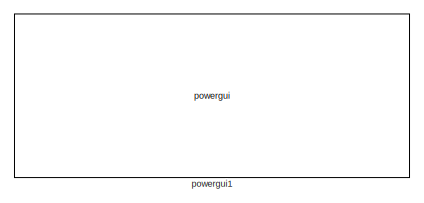
[diagram: root canvas - part 1/3, top center region]
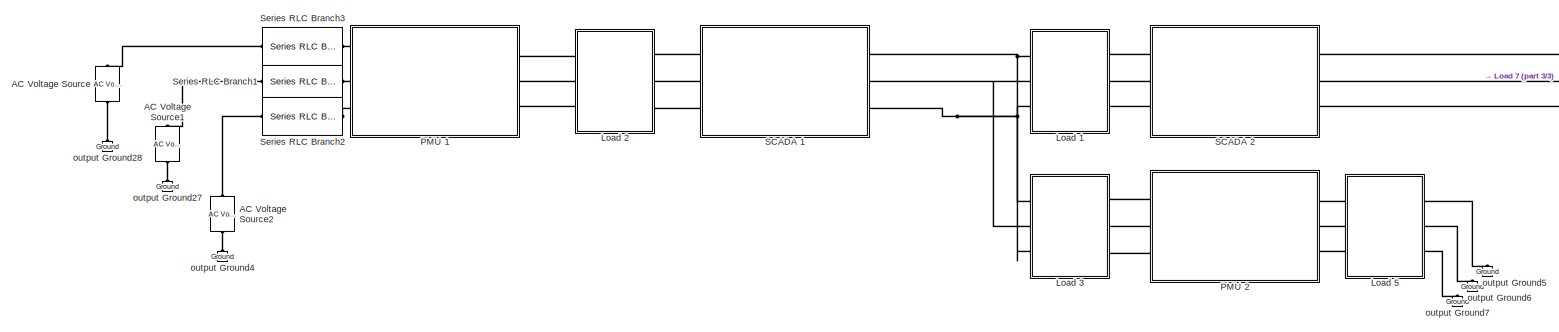
[diagram: root canvas - part 2/3, bottom left region]
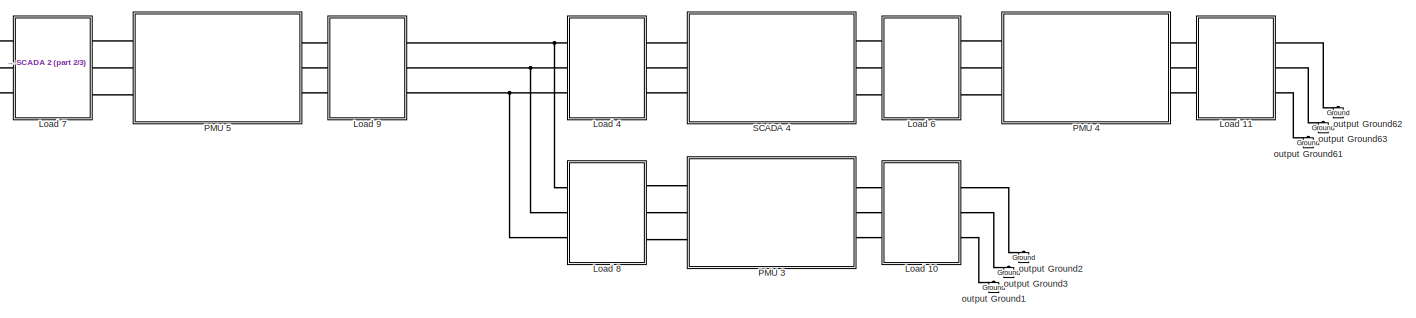
[diagram: root canvas - part 3/3, bottom right region]
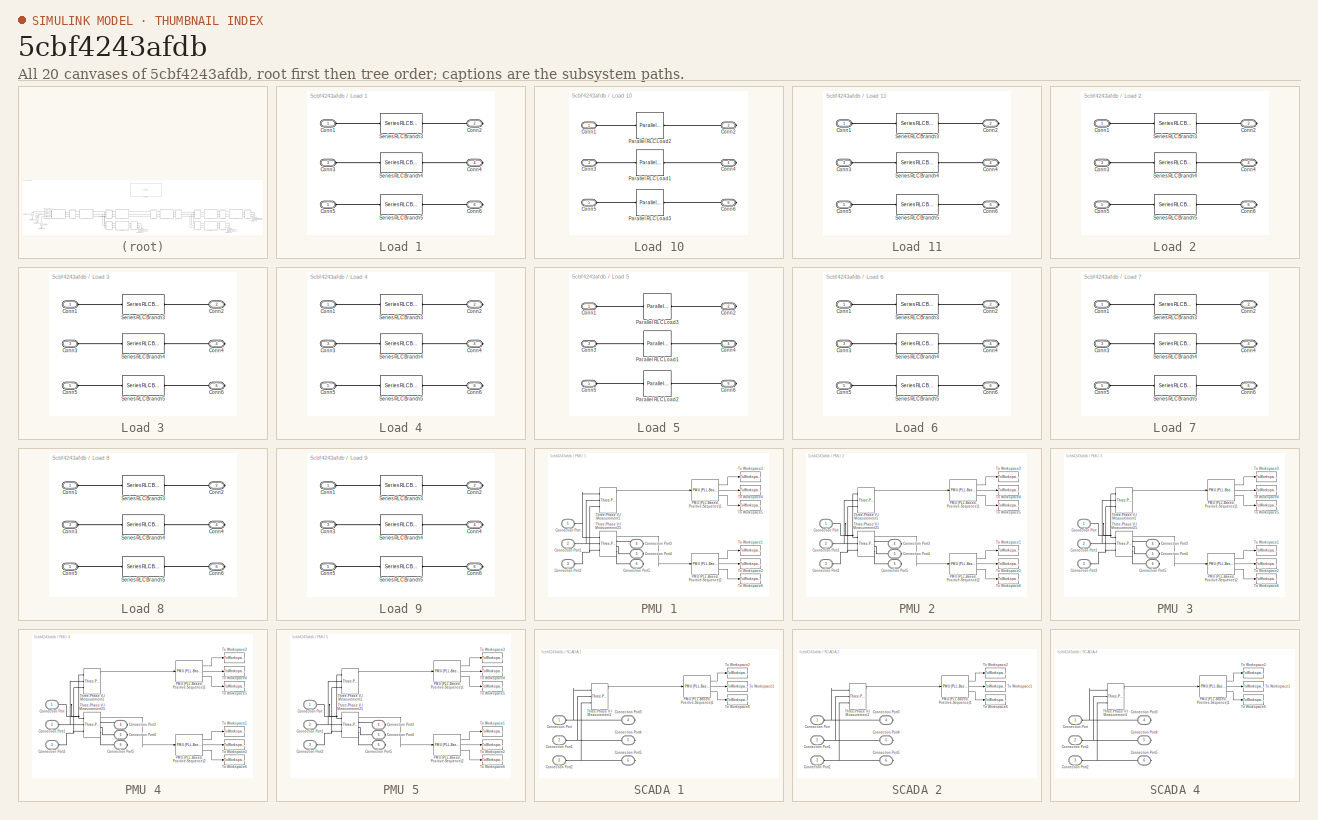
[diagram: thumbnail index - all 20 canvases of the model, root first then tree order]
MODEL slx_5cbf4243afdb
KIND model
CONFIG AbsTol = auto
CONFIG EnableMultiTasking = off
CONFIG FixedStep = auto
CONFIG MaxStep = auto
CONFIG MinStep = auto
CONFIG RelTol = 1e-3
CONFIG SampleTimeConstraint = Unconstrained
CONFIG Solver = VariableStepAuto
CONFIG SolverName = VariableStepAuto
CONFIG StartTime = 0.0
CONFIG StopTime = sim_t
BLOCK [Reference] AC Voltage Source  REF=powerlib/Electrical
Sources/AC Voltage Source
  Ports = [0, 0, 0, 0, 0, 1, 1]
  SourceBlock = powerlib/Electrical\nSources/AC Voltage Source
  SourceProductBaseCode = PS
  SourceProductName = Simscape Power Systems
  SourceType = AC Voltage Source
BLOCK [Reference] AC Voltage Source1  REF=powerlib/Electrical
Sources/AC Voltage Source
  Ports = [0, 0, 0, 0, 0, 1, 1]
  SourceBlock = powerlib/Electrical\nSources/AC Voltage Source
  SourceProductBaseCode = PS
  SourceProductName = Simscape Power Systems
  SourceType = AC Voltage Source
BLOCK [Reference] AC Voltage Source2  REF=powerlib/Electrical
Sources/AC Voltage Source
  Ports = [0, 0, 0, 0, 0, 1, 1]
  SourceBlock = powerlib/Electrical\nSources/AC Voltage Source
  SourceProductBaseCode = PS
  SourceProductName = Simscape Power Systems
  SourceType = AC Voltage Source
BLOCK [SubSystem] Load 1
  Ports = [0, 0, 0, 0, 0, 3, 3]
  RequestExecContextInheritance = off
BLOCK [PMIOPort] Load 1/Conn1
  Side = Left
BLOCK [PMIOPort] Load 1/Conn2
  Port = 2
  Side = Right
BLOCK [PMIOPort] Load 1/Conn3
  Port = 3
  Side = Left
BLOCK [PMIOPort] Load 1/Conn4
  Port = 4
  Side = Right
BLOCK [PMIOPort] Load 1/Conn5
  Port = 5
  Side = Left
BLOCK [PMIOPort] Load 1/Conn6
  Port = 6
  Side = Right
BLOCK [Reference] Load 1/Series RLC Branch3  REF=powerlib/Elements/Series RLC Branch
  Ports = [0, 0, 0, 0, 0, 1, 1]
  SourceBlock = powerlib/Elements/Series RLC Branch
  SourceProductBaseCode = PS
  SourceProductName = Simscape Power Systems
  SourceType = Series RLC Branch
BLOCK [Reference] Load 1/Series RLC Branch4  REF=powerlib/Elements/Series RLC Branch
  Ports = [0, 0, 0, 0, 0, 1, 1]
  SourceBlock = powerlib/Elements/Series RLC Branch
  SourceProductBaseCode = PS
  SourceProductName = Simscape Power Systems
  SourceType = Series RLC Branch
BLOCK [Reference] Load 1/Series RLC Branch5  REF=powerlib/Elements/Series RLC Branch
  Ports = [0, 0, 0, 0, 0, 1, 1]
  SourceBlock = powerlib/Elements/Series RLC Branch
  SourceProductBaseCode = PS
  SourceProductName = Simscape Power Systems
  SourceType = Series RLC Branch
BLOCK [SubSystem] Load 10
  Ports = [0, 0, 0, 0, 0, 3, 3]
  RequestExecContextInheritance = off
BLOCK [PMIOPort] Load 10/Conn1
  Side = Left
BLOCK [PMIOPort] Load 10/Conn2
  Port = 2
  Side = Right
BLOCK [PMIOPort] Load 10/Conn3
  Port = 3
  Side = Left
BLOCK [PMIOPort] Load 10/Conn4
  Port = 4
  Side = Right
BLOCK [PMIOPort] Load 10/Conn5
  Port = 5
  Side = Left
BLOCK [PMIOPort] Load 10/Conn6
  Port = 6
  Side = Right
BLOCK [Reference] Load 10/Parallel RLC Load1  REF=powerlib/Elements/Parallel RLC Load
  AttributesFormatString = \n
  Ports = [0, 0, 0, 0, 0, 1, 1]
  SourceBlock = powerlib/Elements/Parallel RLC Load
  SourceProductBaseCode = PS
  SourceProductName = Simscape Power Systems
  SourceType = Parallel RLC Load
BLOCK [Reference] Load 10/Parallel RLC Load2  REF=powerlib/Elements/Parallel RLC Load
  AttributesFormatString = \n
  Ports = [0, 0, 0, 0, 0, 1, 1]
  SourceBlock = powerlib/Elements/Parallel RLC Load
  SourceProductBaseCode = PS
  SourceProductName = Simscape Power Systems
  SourceType = Parallel RLC Load
BLOCK [Reference] Load 10/Parallel RLC Load3  REF=powerlib/Elements/Parallel RLC Load
  AttributesFormatString = \n
  Ports = [0, 0, 0, 0, 0, 1, 1]
  SourceBlock = powerlib/Elements/Parallel RLC Load
  SourceProductBaseCode = PS
  SourceProductName = Simscape Power Systems
  SourceType = Parallel RLC Load
BLOCK [SubSystem] Load 11
  Ports = [0, 0, 0, 0, 0, 3, 3]
  RequestExecContextInheritance = off
BLOCK [PMIOPort] Load 11/Conn1
  Side = Left
BLOCK [PMIOPort] Load 11/Conn2
  Port = 2
  Side = Right
BLOCK [PMIOPort] Load 11/Conn3
  Port = 3
  Side = Left
BLOCK [PMIOPort] Load 11/Conn4
  Port = 4
  Side = Right
BLOCK [PMIOPort] Load 11/Conn5
  Port = 5
  Side = Left
BLOCK [PMIOPort] Load 11/Conn6
  Port = 6
  Side = Right
BLOCK [Reference] Load 11/Series RLC Branch3  REF=powerlib/Elements/Series RLC Branch
  Ports = [0, 0, 0, 0, 0, 1, 1]
  SourceBlock = powerlib/Elements/Series RLC Branch
  SourceProductBaseCode = PS
  SourceProductName = Simscape Power Systems
  SourceType = Series RLC Branch
BLOCK [Reference] Load 11/Series RLC Branch4  REF=powerlib/Elements/Series RLC Branch
  Ports = [0, 0, 0, 0, 0, 1, 1]
  SourceBlock = powerlib/Elements/Series RLC Branch
  SourceProductBaseCode = PS
  SourceProductName = Simscape Power Systems
  SourceType = Series RLC Branch
BLOCK [Reference] Load 11/Series RLC Branch5  REF=powerlib/Elements/Series RLC Branch
  Ports = [0, 0, 0, 0, 0, 1, 1]
  SourceBlock = powerlib/Elements/Series RLC Branch
  SourceProductBaseCode = PS
  SourceProductName = Simscape Power Systems
  SourceType = Series RLC Branch
BLOCK [SubSystem] Load 2
  Ports = [0, 0, 0, 0, 0, 3, 3]
  RequestExecContextInheritance = off
BLOCK [PMIOPort] Load 2/Conn1
  Side = Left
BLOCK [PMIOPort] Load 2/Conn2
  Port = 2
  Side = Right
BLOCK [PMIOPort] Load 2/Conn3
  Port = 3
  Side = Left
BLOCK [PMIOPort] Load 2/Conn4
  Port = 4
  Side = Right
BLOCK [PMIOPort] Load 2/Conn5
  Port = 5
  Side = Left
BLOCK [PMIOPort] Load 2/Conn6
  Port = 6
  Side = Right
BLOCK [Reference] Load 2/Series RLC Branch3  REF=powerlib/Elements/Series RLC Branch
  Ports = [0, 0, 0, 0, 0, 1, 1]
  SourceBlock = powerlib/Elements/Series RLC Branch
  SourceProductBaseCode = PS
  SourceProductName = Simscape Power Systems
  SourceType = Series RLC Branch
BLOCK [Reference] Load 2/Series RLC Branch4  REF=powerlib/Elements/Series RLC Branch
  Ports = [0, 0, 0, 0, 0, 1, 1]
  SourceBlock = powerlib/Elements/Series RLC Branch
  SourceProductBaseCode = PS
  SourceProductName = Simscape Power Systems
  SourceType = Series RLC Branch
BLOCK [Reference] Load 2/Series RLC Branch5  REF=powerlib/Elements/Series RLC Branch
  Ports = [0, 0, 0, 0, 0, 1, 1]
  SourceBlock = powerlib/Elements/Series RLC Branch
  SourceProductBaseCode = PS
  SourceProductName = Simscape Power Systems
  SourceType = Series RLC Branch
BLOCK [SubSystem] Load 3
  Ports = [0, 0, 0, 0, 0, 3, 3]
  RequestExecContextInheritance = off
BLOCK [PMIOPort] Load 3/Conn1
  Side = Left
BLOCK [PMIOPort] Load 3/Conn2
  Port = 2
  Side = Right
BLOCK [PMIOPort] Load 3/Conn3
  Port = 3
  Side = Left
BLOCK [PMIOPort] Load 3/Conn4
  Port = 4
  Side = Right
BLOCK [PMIOPort] Load 3/Conn5
  Port = 5
  Side = Left
BLOCK [PMIOPort] Load 3/Conn6
  Port = 6
  Side = Right
BLOCK [Reference] Load 3/Series RLC Branch3  REF=powerlib/Elements/Series RLC Branch
  Ports = [0, 0, 0, 0, 0, 1, 1]
  SourceBlock = powerlib/Elements/Series RLC Branch
  SourceProductBaseCode = PS
  SourceProductName = Simscape Power Systems
  SourceType = Series RLC Branch
BLOCK [Reference] Load 3/Series RLC Branch4  REF=powerlib/Elements/Series RLC Branch
  Ports = [0, 0, 0, 0, 0, 1, 1]
  SourceBlock = powerlib/Elements/Series RLC Branch
  SourceProductBaseCode = PS
  SourceProductName = Simscape Power Systems
  SourceType = Series RLC Branch
BLOCK [Reference] Load 3/Series RLC Branch5  REF=powerlib/Elements/Series RLC Branch
  Ports = [0, 0, 0, 0, 0, 1, 1]
  SourceBlock = powerlib/Elements/Series RLC Branch
  SourceProductBaseCode = PS
  SourceProductName = Simscape Power Systems
  SourceType = Series RLC Branch
BLOCK [SubSystem] Load 4
  Ports = [0, 0, 0, 0, 0, 3, 3]
  RequestExecContextInheritance = off
BLOCK [PMIOPort] Load 4/Conn1
  Side = Left
BLOCK [PMIOPort] Load 4/Conn2
  Port = 2
  Side = Right
BLOCK [PMIOPort] Load 4/Conn3
  Port = 3
  Side = Left
BLOCK [PMIOPort] Load 4/Conn4
  Port = 4
  Side = Right
BLOCK [PMIOPort] Load 4/Conn5
  Port = 5
  Side = Left
BLOCK [PMIOPort] Load 4/Conn6
  Port = 6
  Side = Right
BLOCK [Reference] Load 4/Series RLC Branch3  REF=powerlib/Elements/Series RLC Branch
  Ports = [0, 0, 0, 0, 0, 1, 1]
  SourceBlock = powerlib/Elements/Series RLC Branch
  SourceProductBaseCode = PS
  SourceProductName = Simscape Power Systems
  SourceType = Series RLC Branch
BLOCK [Reference] Load 4/Series RLC Branch4  REF=powerlib/Elements/Series RLC Branch
  Ports = [0, 0, 0, 0, 0, 1, 1]
  SourceBlock = powerlib/Elements/Series RLC Branch
  SourceProductBaseCode = PS
  SourceProductName = Simscape Power Systems
  SourceType = Series RLC Branch
BLOCK [Reference] Load 4/Series RLC Branch5  REF=powerlib/Elements/Series RLC Branch
  Ports = [0, 0, 0, 0, 0, 1, 1]
  SourceBlock = powerlib/Elements/Series RLC Branch
  SourceProductBaseCode = PS
  SourceProductName = Simscape Power Systems
  SourceType = Series RLC Branch
BLOCK [SubSystem] Load 5
  Ports = [0, 0, 0, 0, 0, 3, 3]
  RequestExecContextInheritance = off
BLOCK [PMIOPort] Load 5/Conn1
  Side = Left
BLOCK [PMIOPort] Load 5/Conn2
  Port = 2
  Side = Right
BLOCK [PMIOPort] Load 5/Conn3
  Port = 3
  Side = Left
BLOCK [PMIOPort] Load 5/Conn4
  Port = 4
  Side = Right
BLOCK [PMIOPort] Load 5/Conn5
  Port = 5
  Side = Left
BLOCK [PMIOPort] Load 5/Conn6
  Port = 6
  Side = Right
BLOCK [Reference] Load 5/Parallel RLC Load1  REF=powerlib/Elements/Parallel RLC Load
  AttributesFormatString = \n
  Ports = [0, 0, 0, 0, 0, 1, 1]
  SourceBlock = powerlib/Elements/Parallel RLC Load
  SourceProductBaseCode = PS
  SourceProductName = Simscape Power Systems
  SourceType = Parallel RLC Load
BLOCK [Reference] Load 5/Parallel RLC Load2  REF=powerlib/Elements/Parallel RLC Load
  AttributesFormatString = \n
  Ports = [0, 0, 0, 0, 0, 1, 1]
  SourceBlock = powerlib/Elements/Parallel RLC Load
  SourceProductBaseCode = PS
  SourceProductName = Simscape Power Systems
  SourceType = Parallel RLC Load
BLOCK [Reference] Load 5/Parallel RLC Load3  REF=powerlib/Elements/Parallel RLC Load
  AttributesFormatString = \n
  Ports = [0, 0, 0, 0, 0, 1, 1]
  SourceBlock = powerlib/Elements/Parallel RLC Load
  SourceProductBaseCode = PS
  SourceProductName = Simscape Power Systems
  SourceType = Parallel RLC Load
BLOCK [SubSystem] Load 6
  Ports = [0, 0, 0, 0, 0, 3, 3]
  RequestExecContextInheritance = off
BLOCK [PMIOPort] Load 6/Conn1
  Side = Left
BLOCK [PMIOPort] Load 6/Conn2
  Port = 2
  Side = Right
BLOCK [PMIOPort] Load 6/Conn3
  Port = 3
  Side = Left
BLOCK [PMIOPort] Load 6/Conn4
  Port = 4
  Side = Right
BLOCK [PMIOPort] Load 6/Conn5
  Port = 5
  Side = Left
BLOCK [PMIOPort] Load 6/Conn6
  Port = 6
  Side = Right
BLOCK [Reference] Load 6/Series RLC Branch3  REF=powerlib/Elements/Series RLC Branch
  Ports = [0, 0, 0, 0, 0, 1, 1]
  SourceBlock = powerlib/Elements/Series RLC Branch
  SourceProductBaseCode = PS
  SourceProductName = Simscape Power Systems
  SourceType = Series RLC Branch
BLOCK [Reference] Load 6/Series RLC Branch4  REF=powerlib/Elements/Series RLC Branch
  Ports = [0, 0, 0, 0, 0, 1, 1]
  SourceBlock = powerlib/Elements/Series RLC Branch
  SourceProductBaseCode = PS
  SourceProductName = Simscape Power Systems
  SourceType = Series RLC Branch
BLOCK [Reference] Load 6/Series RLC Branch5  REF=powerlib/Elements/Series RLC Branch
  Ports = [0, 0, 0, 0, 0, 1, 1]
  SourceBlock = powerlib/Elements/Series RLC Branch
  SourceProductBaseCode = PS
  SourceProductName = Simscape Power Systems
  SourceType = Series RLC Branch
BLOCK [SubSystem] Load 7
  Ports = [0, 0, 0, 0, 0, 3, 3]
  RequestExecContextInheritance = off
BLOCK [PMIOPort] Load 7/Conn1
  Side = Left
BLOCK [PMIOPort] Load 7/Conn2
  Port = 2
  Side = Right
BLOCK [PMIOPort] Load 7/Conn3
  Port = 3
  Side = Left
BLOCK [PMIOPort] Load 7/Conn4
  Port = 4
  Side = Right
BLOCK [PMIOPort] Load 7/Conn5
  Port = 5
  Side = Left
BLOCK [PMIOPort] Load 7/Conn6
  Port = 6
  Side = Right
BLOCK [Reference] Load 7/Series RLC Branch3  REF=powerlib/Elements/Series RLC Branch
  Ports = [0, 0, 0, 0, 0, 1, 1]
  SourceBlock = powerlib/Elements/Series RLC Branch
  SourceProductBaseCode = PS
  SourceProductName = Simscape Power Systems
  SourceType = Series RLC Branch
BLOCK [Reference] Load 7/Series RLC Branch4  REF=powerlib/Elements/Series RLC Branch
  Ports = [0, 0, 0, 0, 0, 1, 1]
  SourceBlock = powerlib/Elements/Series RLC Branch
  SourceProductBaseCode = PS
  SourceProductName = Simscape Power Systems
  SourceType = Series RLC Branch
BLOCK [Reference] Load 7/Series RLC Branch5  REF=powerlib/Elements/Series RLC Branch
  Ports = [0, 0, 0, 0, 0, 1, 1]
  SourceBlock = powerlib/Elements/Series RLC Branch
  SourceProductBaseCode = PS
  SourceProductName = Simscape Power Systems
  SourceType = Series RLC Branch
BLOCK [SubSystem] Load 8
  Ports = [0, 0, 0, 0, 0, 3, 3]
  RequestExecContextInheritance = off
BLOCK [PMIOPort] Load 8/Conn1
  Side = Left
BLOCK [PMIOPort] Load 8/Conn2
  Port = 2
  Side = Right
BLOCK [PMIOPort] Load 8/Conn3
  Port = 3
  Side = Left
BLOCK [PMIOPort] Load 8/Conn4
  Port = 4
  Side = Right
BLOCK [PMIOPort] Load 8/Conn5
  Port = 5
  Side = Left
BLOCK [PMIOPort] Load 8/Conn6
  Port = 6
  Side = Right
BLOCK [Reference] Load 8/Series RLC Branch3  REF=powerlib/Elements/Series RLC Branch
  Ports = [0, 0, 0, 0, 0, 1, 1]
  SourceBlock = powerlib/Elements/Series RLC Branch
  SourceProductBaseCode = PS
  SourceProductName = Simscape Power Systems
  SourceType = Series RLC Branch
BLOCK [Reference] Load 8/Series RLC Branch4  REF=powerlib/Elements/Series RLC Branch
  Ports = [0, 0, 0, 0, 0, 1, 1]
  SourceBlock = powerlib/Elements/Series RLC Branch
  SourceProductBaseCode = PS
  SourceProductName = Simscape Power Systems
  SourceType = Series RLC Branch
BLOCK [Reference] Load 8/Series RLC Branch5  REF=powerlib/Elements/Series RLC Branch
  Ports = [0, 0, 0, 0, 0, 1, 1]
  SourceBlock = powerlib/Elements/Series RLC Branch
  SourceProductBaseCode = PS
  SourceProductName = Simscape Power Systems
  SourceType = Series RLC Branch
BLOCK [SubSystem] Load 9
  Ports = [0, 0, 0, 0, 0, 3, 3]
  RequestExecContextInheritance = off
BLOCK [PMIOPort] Load 9/Conn1
  Side = Left
BLOCK [PMIOPort] Load 9/Conn2
  Port = 2
  Side = Right
BLOCK [PMIOPort] Load 9/Conn3
  Port = 3
  Side = Left
BLOCK [PMIOPort] Load 9/Conn4
  Port = 4
  Side = Right
BLOCK [PMIOPort] Load 9/Conn5
  Port = 5
  Side = Left
BLOCK [PMIOPort] Load 9/Conn6
  Port = 6
  Side = Right
BLOCK [Reference] Load 9/Series RLC Branch3  REF=powerlib/Elements/Series RLC Branch
  Ports = [0, 0, 0, 0, 0, 1, 1]
  SourceBlock = powerlib/Elements/Series RLC Branch
  SourceProductBaseCode = PS
  SourceProductName = Simscape Power Systems
  SourceType = Series RLC Branch
BLOCK [Reference] Load 9/Series RLC Branch4  REF=powerlib/Elements/Series RLC Branch
  Ports = [0, 0, 0, 0, 0, 1, 1]
  SourceBlock = powerlib/Elements/Series RLC Branch
  SourceProductBaseCode = PS
  SourceProductName = Simscape Power Systems
  SourceType = Series RLC Branch
BLOCK [Reference] Load 9/Series RLC Branch5  REF=powerlib/Elements/Series RLC Branch
  Ports = [0, 0, 0, 0, 0, 1, 1]
  SourceBlock = powerlib/Elements/Series RLC Branch
  SourceProductBaseCode = PS
  SourceProductName = Simscape Power Systems
  SourceType = Series RLC Branch
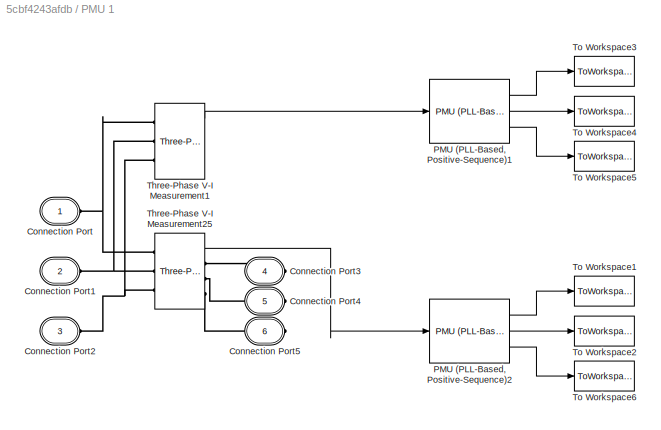
BLOCK [SubSystem] PMU 1
  Ports = [0, 0, 0, 0, 0, 3, 3]
  RequestExecContextInheritance = off
BLOCK [PMIOPort] PMU 1/Connection Port
  Side = Left
  Tag = PMCPort
BLOCK [PMIOPort] PMU 1/Connection Port1
  Port = 2
  Side = Left
  Tag = PMCPort
BLOCK [PMIOPort] PMU 1/Connection Port2
  Port = 3
  Side = Left
  Tag = PMCPort
BLOCK [PMIOPort] PMU 1/Connection Port3
  Port = 4
  Side = Right
  Tag = PMCPort
BLOCK [PMIOPort] PMU 1/Connection Port4
  Port = 5
  Side = Right
  Tag = PMCPort
BLOCK [PMIOPort] PMU 1/Connection Port5
  Port = 6
  Side = Right
  Tag = PMCPort
BLOCK [Reference] PMU 1/PMU (PLL-Based, Positive-Sequence)1  REF=powerlib_meascontrol/Measurements/PMU
(PLL-Based,
Positive-Sequence)
  Ports = [1, 3]
  SourceBlock = powerlib_meascontrol/Measurements/PMU\n(PLL-Based,\nPositive-Sequence)
  SourceProductBaseCode = PS
  SourceProductName = Simscape Electrical
  SourceType = PMU (PLL-Based, Positive-Sequence)
BLOCK [Reference] PMU 1/PMU (PLL-Based, Positive-Sequence)2  REF=powerlib_meascontrol/Measurements/PMU
(PLL-Based,
Positive-Sequence)
  Ports = [1, 3]
  SourceBlock = powerlib_meascontrol/Measurements/PMU\n(PLL-Based,\nPositive-Sequence)
  SourceProductBaseCode = PS
  SourceProductName = Simscape Electrical
  SourceType = PMU (PLL-Based, Positive-Sequence)
BLOCK [Reference] PMU 1/Three-Phase V-I Measurement1  REF=powerlib/Measurements/Three-Phase
V-I Measurement
  Ports = [0, 1, 0, 0, 0, 3, 3]
  SourceBlock = powerlib/Measurements/Three-Phase\nV-I Measurement
  SourceProductBaseCode = PS
  SourceProductName = Simscape Electrical
  SourceType = Three-Phase VI Measurement
BLOCK [Reference] PMU 1/Three-Phase V-I Measurement25  REF=powerlib/Measurements/Three-Phase
V-I Measurement
  Ports = [0, 1, 0, 0, 0, 3, 3]
  SourceBlock = powerlib/Measurements/Three-Phase\nV-I Measurement
  SourceProductBaseCode = PS
  SourceProductName = Simscape Electrical
  SourceType = Three-Phase VI Measurement
BLOCK [ToWorkspace] PMU 1/To Workspace1
  FixptAsFi = on
  MaxDataPoints = inf
  Ports = [1]
  SampleTime = -1
  Save2DSignal = 3-D array (concatenate along third dimension)
  VariableName = i_mag1
BLOCK [ToWorkspace] PMU 1/To Workspace2
  FixptAsFi = on
  MaxDataPoints = inf
  Ports = [1]
  SampleTime = -1
  Save2DSignal = 3-D array (concatenate along third dimension)
  VariableName = i_ang1
BLOCK [ToWorkspace] PMU 1/To Workspace3
  FixptAsFi = on
  MaxDataPoints = inf
  Ports = [1]
  SampleTime = -1
  Save2DSignal = 3-D array (concatenate along third dimension)
  VariableName = v_mag1
BLOCK [ToWorkspace] PMU 1/To Workspace4
  FixptAsFi = on
  MaxDataPoints = inf
  Ports = [1]
  SampleTime = -1
  Save2DSignal = 3-D array (concatenate along third dimension)
  VariableName = v_ang1
BLOCK [ToWorkspace] PMU 1/To Workspace5
  FixptAsFi = on
  MaxDataPoints = inf
  Ports = [1]
  SampleTime = -1
  Save2DSignal = 3-D array (concatenate along third dimension)
  VariableName = v_freq1
BLOCK [ToWorkspace] PMU 1/To Workspace6
  FixptAsFi = on
  MaxDataPoints = inf
  Ports = [1]
  SampleTime = -1
  Save2DSignal = 3-D array (concatenate along third dimension)
  VariableName = i_freq1
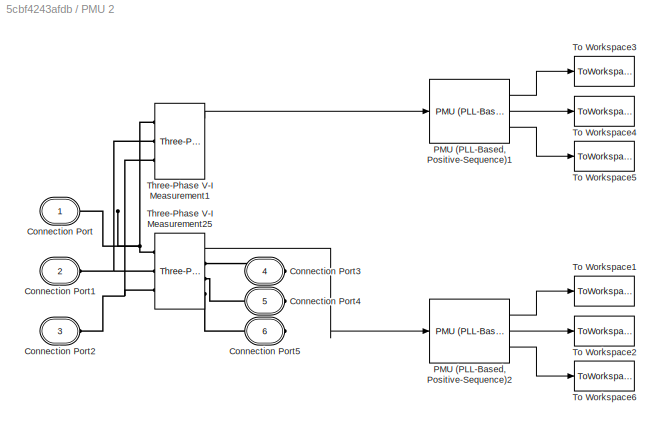
BLOCK [SubSystem] PMU 2
  Ports = [0, 0, 0, 0, 0, 3, 3]
  RequestExecContextInheritance = off
BLOCK [PMIOPort] PMU 2/Connection Port
  Side = Left
  Tag = PMCPort
BLOCK [PMIOPort] PMU 2/Connection Port1
  Port = 2
  Side = Left
  Tag = PMCPort
BLOCK [PMIOPort] PMU 2/Connection Port2
  Port = 3
  Side = Left
  Tag = PMCPort
BLOCK [PMIOPort] PMU 2/Connection Port3
  Port = 4
  Side = Right
  Tag = PMCPort
BLOCK [PMIOPort] PMU 2/Connection Port4
  Port = 5
  Side = Right
  Tag = PMCPort
BLOCK [PMIOPort] PMU 2/Connection Port5
  Port = 6
  Side = Right
  Tag = PMCPort
BLOCK [Reference] PMU 2/PMU (PLL-Based, Positive-Sequence)1  REF=powerlib_meascontrol/Measurements/PMU
(PLL-Based,
Positive-Sequence)
  Ports = [1, 3]
  SourceBlock = powerlib_meascontrol/Measurements/PMU\n(PLL-Based,\nPositive-Sequence)
  SourceProductBaseCode = PS
  SourceProductName = Simscape Electrical
  SourceType = PMU (PLL-Based, Positive-Sequence)
BLOCK [Reference] PMU 2/PMU (PLL-Based, Positive-Sequence)2  REF=powerlib_meascontrol/Measurements/PMU
(PLL-Based,
Positive-Sequence)
  Ports = [1, 3]
  SourceBlock = powerlib_meascontrol/Measurements/PMU\n(PLL-Based,\nPositive-Sequence)
  SourceProductBaseCode = PS
  SourceProductName = Simscape Electrical
  SourceType = PMU (PLL-Based, Positive-Sequence)
BLOCK [Reference] PMU 2/Three-Phase V-I Measurement1  REF=powerlib/Measurements/Three-Phase
V-I Measurement
  Ports = [0, 1, 0, 0, 0, 3, 3]
  SourceBlock = powerlib/Measurements/Three-Phase\nV-I Measurement
  SourceProductBaseCode = PS
  SourceProductName = Simscape Electrical
  SourceType = Three-Phase VI Measurement
BLOCK [Reference] PMU 2/Three-Phase V-I Measurement25  REF=powerlib/Measurements/Three-Phase
V-I Measurement
  Ports = [0, 1, 0, 0, 0, 3, 3]
  SourceBlock = powerlib/Measurements/Three-Phase\nV-I Measurement
  SourceProductBaseCode = PS
  SourceProductName = Simscape Electrical
  SourceType = Three-Phase VI Measurement
BLOCK [ToWorkspace] PMU 2/To Workspace1
  FixptAsFi = on
  MaxDataPoints = inf
  Ports = [1]
  SampleTime = -1
  Save2DSignal = 3-D array (concatenate along third dimension)
  VariableName = i_mag2
BLOCK [ToWorkspace] PMU 2/To Workspace2
  FixptAsFi = on
  MaxDataPoints = inf
  Ports = [1]
  SampleTime = -1
  Save2DSignal = 3-D array (concatenate along third dimension)
  VariableName = i_ang2
BLOCK [ToWorkspace] PMU 2/To Workspace3
  FixptAsFi = on
  MaxDataPoints = inf
  Ports = [1]
  SampleTime = -1
  Save2DSignal = 3-D array (concatenate along third dimension)
  VariableName = v_mag2
BLOCK [ToWorkspace] PMU 2/To Workspace4
  FixptAsFi = on
  MaxDataPoints = inf
  Ports = [1]
  SampleTime = -1
  Save2DSignal = 3-D array (concatenate along third dimension)
  VariableName = v_ang2
BLOCK [ToWorkspace] PMU 2/To Workspace5
  FixptAsFi = on
  MaxDataPoints = inf
  Ports = [1]
  SampleTime = -1
  Save2DSignal = 3-D array (concatenate along third dimension)
  VariableName = v_freq2
BLOCK [ToWorkspace] PMU 2/To Workspace6
  FixptAsFi = on
  MaxDataPoints = inf
  Ports = [1]
  SampleTime = -1
  Save2DSignal = 3-D array (concatenate along third dimension)
  VariableName = i_freq2
BLOCK [SubSystem] PMU 3
  Ports = [0, 0, 0, 0, 0, 3, 3]
  RequestExecContextInheritance = off
BLOCK [PMIOPort] PMU 3/Connection Port
  Side = Left
  Tag = PMCPort
BLOCK [PMIOPort] PMU 3/Connection Port1
  Port = 2
  Side = Left
  Tag = PMCPort
BLOCK [PMIOPort] PMU 3/Connection Port2
  Port = 3
  Side = Left
  Tag = PMCPort
BLOCK [PMIOPort] PMU 3/Connection Port3
  Port = 4
  Side = Right
  Tag = PMCPort
BLOCK [PMIOPort] PMU 3/Connection Port4
  Port = 5
  Side = Right
  Tag = PMCPort
BLOCK [PMIOPort] PMU 3/Connection Port5
  Port = 6
  Side = Right
  Tag = PMCPort
BLOCK [Reference] PMU 3/PMU (PLL-Based, Positive-Sequence)1  REF=powerlib_meascontrol/Measurements/PMU
(PLL-Based,
Positive-Sequence)
  Ports = [1, 3]
  SourceBlock = powerlib_meascontrol/Measurements/PMU\n(PLL-Based,\nPositive-Sequence)
  SourceProductBaseCode = PS
  SourceProductName = Simscape Electrical
  SourceType = PMU (PLL-Based, Positive-Sequence)
BLOCK [Reference] PMU 3/PMU (PLL-Based, Positive-Sequence)2  REF=powerlib_meascontrol/Measurements/PMU
(PLL-Based,
Positive-Sequence)
  Ports = [1, 3]
  SourceBlock = powerlib_meascontrol/Measurements/PMU\n(PLL-Based,\nPositive-Sequence)
  SourceProductBaseCode = PS
  SourceProductName = Simscape Electrical
  SourceType = PMU (PLL-Based, Positive-Sequence)
BLOCK [Reference] PMU 3/Three-Phase V-I Measurement1  REF=powerlib/Measurements/Three-Phase
V-I Measurement
  Ports = [0, 1, 0, 0, 0, 3, 3]
  SourceBlock = powerlib/Measurements/Three-Phase\nV-I Measurement
  SourceProductBaseCode = PS
  SourceProductName = Simscape Electrical
  SourceType = Three-Phase VI Measurement
BLOCK [Reference] PMU 3/Three-Phase V-I Measurement25  REF=powerlib/Measurements/Three-Phase
V-I Measurement
  Ports = [0, 1, 0, 0, 0, 3, 3]
  SourceBlock = powerlib/Measurements/Three-Phase\nV-I Measurement
  SourceProductBaseCode = PS
  SourceProductName = Simscape Electrical
  SourceType = Three-Phase VI Measurement
BLOCK [ToWorkspace] PMU 3/To Workspace1
  FixptAsFi = on
  MaxDataPoints = inf
  Ports = [1]
  SampleTime = -1
  Save2DSignal = 3-D array (concatenate along third dimension)
  VariableName = i_mag3
BLOCK [ToWorkspace] PMU 3/To Workspace2
  FixptAsFi = on
  MaxDataPoints = inf
  Ports = [1]
  SampleTime = -1
  Save2DSignal = 3-D array (concatenate along third dimension)
  VariableName = i_ang3
BLOCK [ToWorkspace] PMU 3/To Workspace3
  FixptAsFi = on
  MaxDataPoints = inf
  Ports = [1]
  SampleTime = -1
  Save2DSignal = 3-D array (concatenate along third dimension)
  VariableName = v_mag3
BLOCK [ToWorkspace] PMU 3/To Workspace4
  FixptAsFi = on
  MaxDataPoints = inf
  Ports = [1]
  SampleTime = -1
  Save2DSignal = 3-D array (concatenate along third dimension)
  VariableName = v_ang3
BLOCK [ToWorkspace] PMU 3/To Workspace5
  FixptAsFi = on
  MaxDataPoints = inf
  Ports = [1]
  SampleTime = -1
  Save2DSignal = 3-D array (concatenate along third dimension)
  VariableName = v_freq3
BLOCK [ToWorkspace] PMU 3/To Workspace6
  FixptAsFi = on
  MaxDataPoints = inf
  Ports = [1]
  SampleTime = -1
  Save2DSignal = 3-D array (concatenate along third dimension)
  VariableName = i_freq3
BLOCK [SubSystem] PMU 4
  Ports = [0, 0, 0, 0, 0, 3, 3]
  RequestExecContextInheritance = off
BLOCK [PMIOPort] PMU 4/Connection Port
  Side = Left
  Tag = PMCPort
BLOCK [PMIOPort] PMU 4/Connection Port1
  Port = 2
  Side = Left
  Tag = PMCPort
BLOCK [PMIOPort] PMU 4/Connection Port2
  Port = 3
  Side = Left
  Tag = PMCPort
BLOCK [PMIOPort] PMU 4/Connection Port3
  Port = 4
  Side = Right
  Tag = PMCPort
BLOCK [PMIOPort] PMU 4/Connection Port4
  Port = 5
  Side = Right
  Tag = PMCPort
BLOCK [PMIOPort] PMU 4/Connection Port5
  Port = 6
  Side = Right
  Tag = PMCPort
BLOCK [Reference] PMU 4/PMU (PLL-Based, Positive-Sequence)1  REF=powerlib_meascontrol/Measurements/PMU
(PLL-Based,
Positive-Sequence)
  Ports = [1, 3]
  SourceBlock = powerlib_meascontrol/Measurements/PMU\n(PLL-Based,\nPositive-Sequence)
  SourceProductBaseCode = PS
  SourceProductName = Simscape Electrical
  SourceType = PMU (PLL-Based, Positive-Sequence)
BLOCK [Reference] PMU 4/PMU (PLL-Based, Positive-Sequence)2  REF=powerlib_meascontrol/Measurements/PMU
(PLL-Based,
Positive-Sequence)
  Ports = [1, 3]
  SourceBlock = powerlib_meascontrol/Measurements/PMU\n(PLL-Based,\nPositive-Sequence)
  SourceProductBaseCode = PS
  SourceProductName = Simscape Electrical
  SourceType = PMU (PLL-Based, Positive-Sequence)
BLOCK [Reference] PMU 4/Three-Phase V-I Measurement1  REF=powerlib/Measurements/Three-Phase
V-I Measurement
  Ports = [0, 1, 0, 0, 0, 3, 3]
  SourceBlock = powerlib/Measurements/Three-Phase\nV-I Measurement
  SourceProductBaseCode = PS
  SourceProductName = Simscape Electrical
  SourceType = Three-Phase VI Measurement
BLOCK [Reference] PMU 4/Three-Phase V-I Measurement25  REF=powerlib/Measurements/Three-Phase
V-I Measurement
  Ports = [0, 1, 0, 0, 0, 3, 3]
  SourceBlock = powerlib/Measurements/Three-Phase\nV-I Measurement
  SourceProductBaseCode = PS
  SourceProductName = Simscape Electrical
  SourceType = Three-Phase VI Measurement
BLOCK [ToWorkspace] PMU 4/To Workspace1
  FixptAsFi = on
  MaxDataPoints = inf
  Ports = [1]
  SampleTime = -1
  Save2DSignal = 3-D array (concatenate along third dimension)
  VariableName = i_mag4
BLOCK [ToWorkspace] PMU 4/To Workspace2
  FixptAsFi = on
  MaxDataPoints = inf
  Ports = [1]
  SampleTime = -1
  Save2DSignal = 3-D array (concatenate along third dimension)
  VariableName = i_ang4
BLOCK [ToWorkspace] PMU 4/To Workspace3
  FixptAsFi = on
  MaxDataPoints = inf
  Ports = [1]
  SampleTime = -1
  Save2DSignal = 3-D array (concatenate along third dimension)
  VariableName = v_mag4
BLOCK [ToWorkspace] PMU 4/To Workspace4
  FixptAsFi = on
  MaxDataPoints = inf
  Ports = [1]
  SampleTime = -1
  Save2DSignal = 3-D array (concatenate along third dimension)
  VariableName = v_ang4
BLOCK [ToWorkspace] PMU 4/To Workspace5
  FixptAsFi = on
  MaxDataPoints = inf
  Ports = [1]
  SampleTime = -1
  Save2DSignal = 3-D array (concatenate along third dimension)
  VariableName = v_freq4
BLOCK [ToWorkspace] PMU 4/To Workspace6
  FixptAsFi = on
  MaxDataPoints = inf
  Ports = [1]
  SampleTime = -1
  Save2DSignal = 3-D array (concatenate along third dimension)
  VariableName = i_freq4
BLOCK [SubSystem] PMU 5
  Ports = [0, 0, 0, 0, 0, 3, 3]
  RequestExecContextInheritance = off
BLOCK [PMIOPort] PMU 5/Connection Port
  Side = Left
  Tag = PMCPort
BLOCK [PMIOPort] PMU 5/Connection Port1
  Port = 2
  Side = Left
  Tag = PMCPort
BLOCK [PMIOPort] PMU 5/Connection Port2
  Port = 3
  Side = Left
  Tag = PMCPort
BLOCK [PMIOPort] PMU 5/Connection Port3
  Port = 4
  Side = Right
  Tag = PMCPort
BLOCK [PMIOPort] PMU 5/Connection Port4
  Port = 5
  Side = Right
  Tag = PMCPort
BLOCK [PMIOPort] PMU 5/Connection Port5
  Port = 6
  Side = Right
  Tag = PMCPort
BLOCK [Reference] PMU 5/PMU (PLL-Based, Positive-Sequence)1  REF=powerlib_meascontrol/Measurements/PMU
(PLL-Based,
Positive-Sequence)
  Ports = [1, 3]
  SourceBlock = powerlib_meascontrol/Measurements/PMU\n(PLL-Based,\nPositive-Sequence)
  SourceProductBaseCode = PS
  SourceProductName = Simscape Electrical
  SourceType = PMU (PLL-Based, Positive-Sequence)
BLOCK [Reference] PMU 5/PMU (PLL-Based, Positive-Sequence)2  REF=powerlib_meascontrol/Measurements/PMU
(PLL-Based,
Positive-Sequence)
  Ports = [1, 3]
  SourceBlock = powerlib_meascontrol/Measurements/PMU\n(PLL-Based,\nPositive-Sequence)
  SourceProductBaseCode = PS
  SourceProductName = Simscape Electrical
  SourceType = PMU (PLL-Based, Positive-Sequence)
BLOCK [Reference] PMU 5/Three-Phase V-I Measurement1  REF=powerlib/Measurements/Three-Phase
V-I Measurement
  Ports = [0, 1, 0, 0, 0, 3, 3]
  SourceBlock = powerlib/Measurements/Three-Phase\nV-I Measurement
  SourceProductBaseCode = PS
  SourceProductName = Simscape Electrical
  SourceType = Three-Phase VI Measurement
BLOCK [Reference] PMU 5/Three-Phase V-I Measurement25  REF=powerlib/Measurements/Three-Phase
V-I Measurement
  Ports = [0, 1, 0, 0, 0, 3, 3]
  SourceBlock = powerlib/Measurements/Three-Phase\nV-I Measurement
  SourceProductBaseCode = PS
  SourceProductName = Simscape Electrical
  SourceType = Three-Phase VI Measurement
BLOCK [ToWorkspace] PMU 5/To Workspace1
  FixptAsFi = on
  MaxDataPoints = inf
  Ports = [1]
  SampleTime = -1
  Save2DSignal = 3-D array (concatenate along third dimension)
  VariableName = i_mag5
BLOCK [ToWorkspace] PMU 5/To Workspace2
  FixptAsFi = on
  MaxDataPoints = inf
  Ports = [1]
  SampleTime = -1
  Save2DSignal = 3-D array (concatenate along third dimension)
  VariableName = i_ang5
BLOCK [ToWorkspace] PMU 5/To Workspace3
  FixptAsFi = on
  MaxDataPoints = inf
  Ports = [1]
  SampleTime = -1
  Save2DSignal = 3-D array (concatenate along third dimension)
  VariableName = v_mag5
BLOCK [ToWorkspace] PMU 5/To Workspace4
  FixptAsFi = on
  MaxDataPoints = inf
  Ports = [1]
  SampleTime = -1
  Save2DSignal = 3-D array (concatenate along third dimension)
  VariableName = v_ang5
BLOCK [ToWorkspace] PMU 5/To Workspace5
  FixptAsFi = on
  MaxDataPoints = inf
  Ports = [1]
  SampleTime = -1
  Save2DSignal = 3-D array (concatenate along third dimension)
  VariableName = v_freq5
BLOCK [ToWorkspace] PMU 5/To Workspace6
  FixptAsFi = on
  MaxDataPoints = inf
  Ports = [1]
  SampleTime = -1
  Save2DSignal = 3-D array (concatenate along third dimension)
  VariableName = i_freq5
BLOCK [SubSystem] SCADA 1
  Ports = [0, 0, 0, 0, 0, 3, 3]
  RequestExecContextInheritance = off
BLOCK [PMIOPort] SCADA 1/Connection Port
  Side = Left
  Tag = PMCPort
BLOCK [PMIOPort] SCADA 1/Connection Port1
  Port = 2
  Side = Left
  Tag = PMCPort
BLOCK [PMIOPort] SCADA 1/Connection Port2
  Port = 3
  Side = Left
  Tag = PMCPort
BLOCK [PMIOPort] SCADA 1/Connection Port3
  Port = 4
  Side = Right
  Tag = PMCPort
BLOCK [PMIOPort] SCADA 1/Connection Port4
  Port = 5
  Side = Right
  Tag = PMCPort
BLOCK [PMIOPort] SCADA 1/Connection Port5
  Port = 6
  Side = Right
  Tag = PMCPort
BLOCK [Reference] SCADA 1/PMU (PLL-Based, Positive-Sequence)1  REF=powerlib_meascontrol/Measurements/PMU
(PLL-Based,
Positive-Sequence)
  Ports = [1, 3]
  SourceBlock = powerlib_meascontrol/Measurements/PMU\n(PLL-Based,\nPositive-Sequence)
  SourceProductBaseCode = PS
  SourceProductName = Simscape Electrical
  SourceType = PMU (PLL-Based, Positive-Sequence)
BLOCK [Reference] SCADA 1/Three-Phase V-I Measurement1  REF=powerlib/Measurements/Three-Phase
V-I Measurement
  Ports = [0, 1, 0, 0, 0, 3, 3]
  SourceBlock = powerlib/Measurements/Three-Phase\nV-I Measurement
  SourceProductBaseCode = PS
  SourceProductName = Simscape Electrical
  SourceType = Three-Phase VI Measurement
BLOCK [ToWorkspace] SCADA 1/To Workspace1
  FixptAsFi = on
  MaxDataPoints = inf
  Ports = [1]
  SampleTime = -1
  Save2DSignal = 3-D array (concatenate along third dimension)
  VariableName = scada_ang1
BLOCK [ToWorkspace] SCADA 1/To Workspace2
  FixptAsFi = on
  MaxDataPoints = inf
  Ports = [1]
  SampleTime = -1
  Save2DSignal = 3-D array (concatenate along third dimension)
  VariableName = scada_mag1
BLOCK [ToWorkspace] SCADA 1/To Workspace6
  FixptAsFi = on
  MaxDataPoints = inf
  Ports = [1]
  SampleTime = -1
  Save2DSignal = 3-D array (concatenate along third dimension)
  VariableName = scada_freq1
BLOCK [SubSystem] SCADA 2
  Ports = [0, 0, 0, 0, 0, 3, 3]
  RequestExecContextInheritance = off
BLOCK [PMIOPort] SCADA 2/Connection Port
  Side = Left
  Tag = PMCPort
BLOCK [PMIOPort] SCADA 2/Connection Port1
  Port = 2
  Side = Left
  Tag = PMCPort
BLOCK [PMIOPort] SCADA 2/Connection Port2
  Port = 3
  Side = Left
  Tag = PMCPort
BLOCK [PMIOPort] SCADA 2/Connection Port3
  Port = 4
  Side = Right
  Tag = PMCPort
BLOCK [PMIOPort] SCADA 2/Connection Port4
  Port = 5
  Side = Right
  Tag = PMCPort
BLOCK [PMIOPort] SCADA 2/Connection Port5
  Port = 6
  Side = Right
  Tag = PMCPort
BLOCK [Reference] SCADA 2/PMU (PLL-Based, Positive-Sequence)1  REF=powerlib_meascontrol/Measurements/PMU
(PLL-Based,
Positive-Sequence)
  Ports = [1, 3]
  SourceBlock = powerlib_meascontrol/Measurements/PMU\n(PLL-Based,\nPositive-Sequence)
  SourceProductBaseCode = PS
  SourceProductName = Simscape Electrical
  SourceType = PMU (PLL-Based, Positive-Sequence)
BLOCK [Reference] SCADA 2/Three-Phase V-I Measurement1  REF=powerlib/Measurements/Three-Phase
V-I Measurement
  Ports = [0, 1, 0, 0, 0, 3, 3]
  SourceBlock = powerlib/Measurements/Three-Phase\nV-I Measurement
  SourceProductBaseCode = PS
  SourceProductName = Simscape Electrical
  SourceType = Three-Phase VI Measurement
BLOCK [ToWorkspace] SCADA 2/To Workspace1
  FixptAsFi = on
  MaxDataPoints = inf
  Ports = [1]
  SampleTime = -1
  Save2DSignal = 3-D array (concatenate along third dimension)
  VariableName = scada_ang2
BLOCK [ToWorkspace] SCADA 2/To Workspace2
  FixptAsFi = on
  MaxDataPoints = inf
  Ports = [1]
  SampleTime = -1
  Save2DSignal = 3-D array (concatenate along third dimension)
  VariableName = scada_mag2
BLOCK [ToWorkspace] SCADA 2/To Workspace6
  FixptAsFi = on
  MaxDataPoints = inf
  Ports = [1]
  SampleTime = -1
  Save2DSignal = 3-D array (concatenate along third dimension)
  VariableName = scada_freq2
BLOCK [SubSystem] SCADA 4
  Ports = [0, 0, 0, 0, 0, 3, 3]
  RequestExecContextInheritance = off
BLOCK [PMIOPort] SCADA 4/Connection Port
  Side = Left
  Tag = PMCPort
BLOCK [PMIOPort] SCADA 4/Connection Port1
  Port = 2
  Side = Left
  Tag = PMCPort
BLOCK [PMIOPort] SCADA 4/Connection Port2
  Port = 3
  Side = Left
  Tag = PMCPort
BLOCK [PMIOPort] SCADA 4/Connection Port3
  Port = 4
  Side = Right
  Tag = PMCPort
BLOCK [PMIOPort] SCADA 4/Connection Port4
  Port = 5
  Side = Right
  Tag = PMCPort
BLOCK [PMIOPort] SCADA 4/Connection Port5
  Port = 6
  Side = Right
  Tag = PMCPort
BLOCK [Reference] SCADA 4/PMU (PLL-Based, Positive-Sequence)1  REF=powerlib_meascontrol/Measurements/PMU
(PLL-Based,
Positive-Sequence)
  Ports = [1, 3]
  SourceBlock = powerlib_meascontrol/Measurements/PMU\n(PLL-Based,\nPositive-Sequence)
  SourceProductBaseCode = PS
  SourceProductName = Simscape Electrical
  SourceType = PMU (PLL-Based, Positive-Sequence)
BLOCK [Reference] SCADA 4/Three-Phase V-I Measurement1  REF=powerlib/Measurements/Three-Phase
V-I Measurement
  Ports = [0, 1, 0, 0, 0, 3, 3]
  SourceBlock = powerlib/Measurements/Three-Phase\nV-I Measurement
  SourceProductBaseCode = PS
  SourceProductName = Simscape Electrical
  SourceType = Three-Phase VI Measurement
BLOCK [ToWorkspace] SCADA 4/To Workspace1
  FixptAsFi = on
  MaxDataPoints = inf
  Ports = [1]
  SampleTime = -1
  Save2DSignal = 3-D array (concatenate along third dimension)
  VariableName = scada_ang4
BLOCK [ToWorkspace] SCADA 4/To Workspace2
  FixptAsFi = on
  MaxDataPoints = inf
  Ports = [1]
  SampleTime = -1
  Save2DSignal = 3-D array (concatenate along third dimension)
  VariableName = scada_mag4
BLOCK [ToWorkspace] SCADA 4/To Workspace6
  FixptAsFi = on
  MaxDataPoints = inf
  Ports = [1]
  SampleTime = -1
  Save2DSignal = 3-D array (concatenate along third dimension)
  VariableName = scada_freq4
BLOCK [Reference] Series RLC Branch1  REF=powerlib/Elements/Series RLC Branch
  Ports = [0, 0, 0, 0, 0, 1, 1]
  SourceBlock = powerlib/Elements/Series RLC Branch
  SourceProductBaseCode = PS
  SourceProductName = Simscape Power Systems
  SourceType = Series RLC Branch
BLOCK [Reference] Series RLC Branch2  REF=powerlib/Elements/Series RLC Branch
  Ports = [0, 0, 0, 0, 0, 1, 1]
  SourceBlock = powerlib/Elements/Series RLC Branch
  SourceProductBaseCode = PS
  SourceProductName = Simscape Power Systems
  SourceType = Series RLC Branch
BLOCK [Reference] Series RLC Branch3  REF=powerlib/Elements/Series RLC Branch
  Ports = [0, 0, 0, 0, 0, 1, 1]
  SourceBlock = powerlib/Elements/Series RLC Branch
  SourceProductBaseCode = PS
  SourceProductName = Simscape Power Systems
  SourceType = Series RLC Branch
BLOCK [Reference] output Ground1  REF=powerlib/Elements/Ground
  AttributesFormatString = \n
  Ports = [0, 0, 0, 0, 0, 1]
  SourceBlock = powerlib/Elements/Ground
  SourceProductBaseCode = PS
  SourceProductName = Simscape Electrical
  SourceType = Ground
BLOCK [Reference] output Ground2  REF=powerlib/Elements/Ground
  AttributesFormatString = \n
  Ports = [0, 0, 0, 0, 0, 1]
  SourceBlock = powerlib/Elements/Ground
  SourceProductBaseCode = PS
  SourceProductName = Simscape Electrical
  SourceType = Ground
BLOCK [Reference] output Ground27  REF=powerlib/Elements/Ground
  AttributesFormatString = \n
  Ports = [0, 0, 0, 0, 0, 1]
  SourceBlock = powerlib/Elements/Ground
  SourceProductBaseCode = PS
  SourceProductName = Simscape Electrical
  SourceType = Ground
BLOCK [Reference] output Ground28  REF=powerlib/Elements/Ground
  AttributesFormatString = \n
  Ports = [0, 0, 0, 0, 0, 1]
  SourceBlock = powerlib/Elements/Ground
  SourceProductBaseCode = PS
  SourceProductName = Simscape Electrical
  SourceType = Ground
BLOCK [Reference] output Ground3  REF=powerlib/Elements/Ground
  AttributesFormatString = \n
  Ports = [0, 0, 0, 0, 0, 1]
  SourceBlock = powerlib/Elements/Ground
  SourceProductBaseCode = PS
  SourceProductName = Simscape Electrical
  SourceType = Ground
BLOCK [Reference] output Ground4  REF=powerlib/Elements/Ground
  AttributesFormatString = \n
  Ports = [0, 0, 0, 0, 0, 1]
  SourceBlock = powerlib/Elements/Ground
  SourceProductBaseCode = PS
  SourceProductName = Simscape Electrical
  SourceType = Ground
BLOCK [Reference] output Ground5  REF=powerlib/Elements/Ground
  AttributesFormatString = \n
  Ports = [0, 0, 0, 0, 0, 1]
  SourceBlock = powerlib/Elements/Ground
  SourceProductBaseCode = PS
  SourceProductName = Simscape Electrical
  SourceType = Ground
BLOCK [Reference] output Ground6  REF=powerlib/Elements/Ground
  AttributesFormatString = \n
  Ports = [0, 0, 0, 0, 0, 1]
  SourceBlock = powerlib/Elements/Ground
  SourceProductBaseCode = PS
  SourceProductName = Simscape Electrical
  SourceType = Ground
BLOCK [Reference] output Ground61  REF=powerlib/Elements/Ground
  AttributesFormatString = \n
  Ports = [0, 0, 0, 0, 0, 1]
  SourceBlock = powerlib/Elements/Ground
  SourceProductBaseCode = PS
  SourceProductName = Simscape Electrical
  SourceType = Ground
BLOCK [Reference] output Ground62  REF=powerlib/Elements/Ground
  AttributesFormatString = \n
  Ports = [0, 0, 0, 0, 0, 1]
  SourceBlock = powerlib/Elements/Ground
  SourceProductBaseCode = PS
  SourceProductName = Simscape Electrical
  SourceType = Ground
BLOCK [Reference] output Ground63  REF=powerlib/Elements/Ground
  AttributesFormatString = \n
  Ports = [0, 0, 0, 0, 0, 1]
  SourceBlock = powerlib/Elements/Ground
  SourceProductBaseCode = PS
  SourceProductName = Simscape Electrical
  SourceType = Ground
BLOCK [Reference] output Ground7  REF=powerlib/Elements/Ground
  AttributesFormatString = \n
  Ports = [0, 0, 0, 0, 0, 1]
  SourceBlock = powerlib/Elements/Ground
  SourceProductBaseCode = PS
  SourceProductName = Simscape Electrical
  SourceType = Ground
BLOCK [Reference] powergui1  REF=powerlib/powergui
  Ports = []
  Priority = 1
  SourceBlock = powerlib/powergui
  SourceProductBaseCode = PS
  SourceProductName = Simscape Power Systems
  SourceType = PSB option menu block
LINE PMU 1/PMU (PLL-Based, Positive-Sequence)1:1 -> PMU 1/To Workspace3:1
LINE PMU 1/PMU (PLL-Based, Positive-Sequence)1:2 -> PMU 1/To Workspace4:1
LINE PMU 1/PMU (PLL-Based, Positive-Sequence)1:3 -> PMU 1/To Workspace5:1
LINE PMU 1/PMU (PLL-Based, Positive-Sequence)2:1 -> PMU 1/To Workspace1:1
LINE PMU 1/PMU (PLL-Based, Positive-Sequence)2:2 -> PMU 1/To Workspace2:1
LINE PMU 1/PMU (PLL-Based, Positive-Sequence)2:3 -> PMU 1/To Workspace6:1
LINE PMU 1/Three-Phase V-I Measurement1:1 -> PMU 1/PMU (PLL-Based, Positive-Sequence)1:1
LINE PMU 1/Three-Phase V-I Measurement25:1 -> PMU 1/PMU (PLL-Based, Positive-Sequence)2:1
LINE PMU 2/PMU (PLL-Based, Positive-Sequence)1:1 -> PMU 2/To Workspace3:1
LINE PMU 2/PMU (PLL-Based, Positive-Sequence)1:2 -> PMU 2/To Workspace4:1
LINE PMU 2/PMU (PLL-Based, Positive-Sequence)1:3 -> PMU 2/To Workspace5:1
LINE PMU 2/PMU (PLL-Based, Positive-Sequence)2:1 -> PMU 2/To Workspace1:1
LINE PMU 2/PMU (PLL-Based, Positive-Sequence)2:2 -> PMU 2/To Workspace2:1
LINE PMU 2/PMU (PLL-Based, Positive-Sequence)2:3 -> PMU 2/To Workspace6:1
LINE PMU 2/Three-Phase V-I Measurement1:1 -> PMU 2/PMU (PLL-Based, Positive-Sequence)1:1
LINE PMU 2/Three-Phase V-I Measurement25:1 -> PMU 2/PMU (PLL-Based, Positive-Sequence)2:1
LINE PMU 3/PMU (PLL-Based, Positive-Sequence)1:1 -> PMU 3/To Workspace3:1
LINE PMU 3/PMU (PLL-Based, Positive-Sequence)1:2 -> PMU 3/To Workspace4:1
LINE PMU 3/PMU (PLL-Based, Positive-Sequence)1:3 -> PMU 3/To Workspace5:1
LINE PMU 3/PMU (PLL-Based, Positive-Sequence)2:1 -> PMU 3/To Workspace1:1
LINE PMU 3/PMU (PLL-Based, Positive-Sequence)2:2 -> PMU 3/To Workspace2:1
LINE PMU 3/PMU (PLL-Based, Positive-Sequence)2:3 -> PMU 3/To Workspace6:1
LINE PMU 3/Three-Phase V-I Measurement1:1 -> PMU 3/PMU (PLL-Based, Positive-Sequence)1:1
LINE PMU 3/Three-Phase V-I Measurement25:1 -> PMU 3/PMU (PLL-Based, Positive-Sequence)2:1
LINE PMU 4/PMU (PLL-Based, Positive-Sequence)1:1 -> PMU 4/To Workspace3:1
LINE PMU 4/PMU (PLL-Based, Positive-Sequence)1:2 -> PMU 4/To Workspace4:1
LINE PMU 4/PMU (PLL-Based, Positive-Sequence)1:3 -> PMU 4/To Workspace5:1
LINE PMU 4/PMU (PLL-Based, Positive-Sequence)2:1 -> PMU 4/To Workspace1:1
LINE PMU 4/PMU (PLL-Based, Positive-Sequence)2:2 -> PMU 4/To Workspace2:1
LINE PMU 4/PMU (PLL-Based, Positive-Sequence)2:3 -> PMU 4/To Workspace6:1
LINE PMU 4/Three-Phase V-I Measurement1:1 -> PMU 4/PMU (PLL-Based, Positive-Sequence)1:1
LINE PMU 4/Three-Phase V-I Measurement25:1 -> PMU 4/PMU (PLL-Based, Positive-Sequence)2:1
LINE PMU 5/PMU (PLL-Based, Positive-Sequence)1:1 -> PMU 5/To Workspace3:1
LINE PMU 5/PMU (PLL-Based, Positive-Sequence)1:2 -> PMU 5/To Workspace4:1
LINE PMU 5/PMU (PLL-Based, Positive-Sequence)1:3 -> PMU 5/To Workspace5:1
LINE PMU 5/PMU (PLL-Based, Positive-Sequence)2:1 -> PMU 5/To Workspace1:1
LINE PMU 5/PMU (PLL-Based, Positive-Sequence)2:2 -> PMU 5/To Workspace2:1
LINE PMU 5/PMU (PLL-Based, Positive-Sequence)2:3 -> PMU 5/To Workspace6:1
LINE PMU 5/Three-Phase V-I Measurement1:1 -> PMU 5/PMU (PLL-Based, Positive-Sequence)1:1
LINE PMU 5/Three-Phase V-I Measurement25:1 -> PMU 5/PMU (PLL-Based, Positive-Sequence)2:1
LINE SCADA 1/PMU (PLL-Based, Positive-Sequence)1:1 -> SCADA 1/To Workspace2:1
LINE SCADA 1/PMU (PLL-Based, Positive-Sequence)1:2 -> SCADA 1/To Workspace1:1
LINE SCADA 1/PMU (PLL-Based, Positive-Sequence)1:3 -> SCADA 1/To Workspace6:1
LINE SCADA 1/Three-Phase V-I Measurement1:1 -> SCADA 1/PMU (PLL-Based, Positive-Sequence)1:1
LINE SCADA 2/PMU (PLL-Based, Positive-Sequence)1:1 -> SCADA 2/To Workspace2:1
LINE SCADA 2/PMU (PLL-Based, Positive-Sequence)1:2 -> SCADA 2/To Workspace1:1
LINE SCADA 2/PMU (PLL-Based, Positive-Sequence)1:3 -> SCADA 2/To Workspace6:1
LINE SCADA 2/Three-Phase V-I Measurement1:1 -> SCADA 2/PMU (PLL-Based, Positive-Sequence)1:1
LINE SCADA 4/PMU (PLL-Based, Positive-Sequence)1:1 -> SCADA 4/To Workspace2:1
LINE SCADA 4/PMU (PLL-Based, Positive-Sequence)1:2 -> SCADA 4/To Workspace1:1
LINE SCADA 4/PMU (PLL-Based, Positive-Sequence)1:3 -> SCADA 4/To Workspace6:1
LINE SCADA 4/Three-Phase V-I Measurement1:1 -> SCADA 4/PMU (PLL-Based, Positive-Sequence)1:1
PLINE AC Voltage Source1:LConn1 -- output Ground27:LConn1
PLINE AC Voltage Source1:RConn1 -- Series RLC Branch1:LConn1
PLINE AC Voltage Source2:LConn1 -- output Ground4:LConn1
PLINE AC Voltage Source2:RConn1 -- Series RLC Branch2:LConn1
PLINE AC Voltage Source:LConn1 -- output Ground28:LConn1
PLINE AC Voltage Source:RConn1 -- Series RLC Branch3:LConn1
PLINE Load 1/Conn1:RConn1 -- Load 1/Series RLC Branch3:LConn1
PLINE Load 1/Conn2:RConn1 -- Load 1/Series RLC Branch3:RConn1
PLINE Load 1/Conn3:RConn1 -- Load 1/Series RLC Branch4:LConn1
PLINE Load 1/Conn4:RConn1 -- Load 1/Series RLC Branch4:RConn1
PLINE Load 1/Conn5:RConn1 -- Load 1/Series RLC Branch5:LConn1
PLINE Load 1/Conn6:RConn1 -- Load 1/Series RLC Branch5:RConn1
PLINE Load 10/Conn1:RConn1 -- Load 10/Parallel RLC Load2:LConn1
PLINE Load 10/Conn2:RConn1 -- Load 10/Parallel RLC Load2:RConn1
PLINE Load 10/Conn3:RConn1 -- Load 10/Parallel RLC Load1:LConn1
PLINE Load 10/Conn4:RConn1 -- Load 10/Parallel RLC Load1:RConn1
PLINE Load 10/Conn5:RConn1 -- Load 10/Parallel RLC Load3:LConn1
PLINE Load 10/Conn6:RConn1 -- Load 10/Parallel RLC Load3:RConn1
PLINE Load 10:LConn1 -- PMU 3:RConn1
PLINE Load 10:LConn2 -- PMU 3:RConn2
PLINE Load 10:LConn3 -- PMU 3:RConn3
PLINE Load 10:RConn1 -- output Ground2:LConn1
PLINE Load 10:RConn2 -- output Ground3:LConn1
PLINE Load 10:RConn3 -- output Ground1:LConn1
PLINE Load 11/Conn1:RConn1 -- Load 11/Series RLC Branch3:LConn1
PLINE Load 11/Conn2:RConn1 -- Load 11/Series RLC Branch3:RConn1
PLINE Load 11/Conn3:RConn1 -- Load 11/Series RLC Branch4:LConn1
PLINE Load 11/Conn4:RConn1 -- Load 11/Series RLC Branch4:RConn1
PLINE Load 11/Conn5:RConn1 -- Load 11/Series RLC Branch5:LConn1
PLINE Load 11/Conn6:RConn1 -- Load 11/Series RLC Branch5:RConn1
PLINE Load 11:LConn1 -- PMU 4:RConn1
PLINE Load 11:LConn2 -- PMU 4:RConn2
PLINE Load 11:LConn3 -- PMU 4:RConn3
PLINE Load 11:RConn1 -- output Ground62:LConn1
PLINE Load 11:RConn2 -- output Ground63:LConn1
PLINE Load 11:RConn3 -- output Ground61:LConn1
PNET net1: Load 1:LConn1 -- Load 3:LConn1 -- SCADA 1:RConn1
PNET net2: Load 1:LConn2 -- Load 3:LConn2 -- SCADA 1:RConn2
PNET net3: Load 1:LConn3 -- Load 3:LConn3 -- SCADA 1:RConn3
PLINE Load 1:RConn1 -- SCADA 2:LConn1
PLINE Load 1:RConn2 -- SCADA 2:LConn2
PLINE Load 1:RConn3 -- SCADA 2:LConn3
PLINE Load 2/Conn1:RConn1 -- Load 2/Series RLC Branch3:LConn1
PLINE Load 2/Conn2:RConn1 -- Load 2/Series RLC Branch3:RConn1
PLINE Load 2/Conn3:RConn1 -- Load 2/Series RLC Branch4:LConn1
PLINE Load 2/Conn4:RConn1 -- Load 2/Series RLC Branch4:RConn1
PLINE Load 2/Conn5:RConn1 -- Load 2/Series RLC Branch5:LConn1
PLINE Load 2/Conn6:RConn1 -- Load 2/Series RLC Branch5:RConn1
PLINE Load 2:LConn1 -- PMU 1:RConn1
PLINE Load 2:LConn2 -- PMU 1:RConn2
PLINE Load 2:LConn3 -- PMU 1:RConn3
PLINE Load 2:RConn1 -- SCADA 1:LConn1
PLINE Load 2:RConn2 -- SCADA 1:LConn2
PLINE Load 2:RConn3 -- SCADA 1:LConn3
PLINE Load 3/Conn1:RConn1 -- Load 3/Series RLC Branch3:LConn1
PLINE Load 3/Conn2:RConn1 -- Load 3/Series RLC Branch3:RConn1
PLINE Load 3/Conn3:RConn1 -- Load 3/Series RLC Branch4:LConn1
PLINE Load 3/Conn4:RConn1 -- Load 3/Series RLC Branch4:RConn1
PLINE Load 3/Conn5:RConn1 -- Load 3/Series RLC Branch5:LConn1
PLINE Load 3/Conn6:RConn1 -- Load 3/Series RLC Branch5:RConn1
PLINE Load 3:RConn1 -- PMU 2:LConn1
PLINE Load 3:RConn2 -- PMU 2:LConn2
PLINE Load 3:RConn3 -- PMU 2:LConn3
PLINE Load 4/Conn1:RConn1 -- Load 4/Series RLC Branch3:LConn1
PLINE Load 4/Conn2:RConn1 -- Load 4/Series RLC Branch3:RConn1
PLINE Load 4/Conn3:RConn1 -- Load 4/Series RLC Branch4:LConn1
PLINE Load 4/Conn4:RConn1 -- Load 4/Series RLC Branch4:RConn1
PLINE Load 4/Conn5:RConn1 -- Load 4/Series RLC Branch5:LConn1
PLINE Load 4/Conn6:RConn1 -- Load 4/Series RLC Branch5:RConn1
PNET net4: Load 4:LConn1 -- Load 8:LConn1 -- Load 9:RConn1
PNET net5: Load 4:LConn2 -- Load 8:LConn2 -- Load 9:RConn2
PNET net6: Load 4:LConn3 -- Load 8:LConn3 -- Load 9:RConn3
PLINE Load 4:RConn1 -- SCADA 4:LConn1
PLINE Load 4:RConn2 -- SCADA 4:LConn2
PLINE Load 4:RConn3 -- SCADA 4:LConn3
PLINE Load 5/Conn1:RConn1 -- Load 5/Parallel RLC Load3:LConn1
PLINE Load 5/Conn2:RConn1 -- Load 5/Parallel RLC Load3:RConn1
PLINE Load 5/Conn3:RConn1 -- Load 5/Parallel RLC Load1:LConn1
PLINE Load 5/Conn4:RConn1 -- Load 5/Parallel RLC Load1:RConn1
PLINE Load 5/Conn5:RConn1 -- Load 5/Parallel RLC Load2:LConn1
PLINE Load 5/Conn6:RConn1 -- Load 5/Parallel RLC Load2:RConn1
PLINE Load 5:LConn1 -- PMU 2:RConn1
PLINE Load 5:LConn2 -- PMU 2:RConn2
PLINE Load 5:LConn3 -- PMU 2:RConn3
PLINE Load 5:RConn1 -- output Ground5:LConn1
PLINE Load 5:RConn2 -- output Ground6:LConn1
PLINE Load 5:RConn3 -- output Ground7:LConn1
PLINE Load 6/Conn1:RConn1 -- Load 6/Series RLC Branch3:LConn1
PLINE Load 6/Conn2:RConn1 -- Load 6/Series RLC Branch3:RConn1
PLINE Load 6/Conn3:RConn1 -- Load 6/Series RLC Branch4:LConn1
PLINE Load 6/Conn4:RConn1 -- Load 6/Series RLC Branch4:RConn1
PLINE Load 6/Conn5:RConn1 -- Load 6/Series RLC Branch5:LConn1
PLINE Load 6/Conn6:RConn1 -- Load 6/Series RLC Branch5:RConn1
PLINE Load 6:LConn1 -- SCADA 4:RConn1
PLINE Load 6:LConn2 -- SCADA 4:RConn2
PLINE Load 6:LConn3 -- SCADA 4:RConn3
PLINE Load 6:RConn1 -- PMU 4:LConn1
PLINE Load 6:RConn2 -- PMU 4:LConn2
PLINE Load 6:RConn3 -- PMU 4:LConn3
PLINE Load 7/Conn1:RConn1 -- Load 7/Series RLC Branch3:LConn1
PLINE Load 7/Conn2:RConn1 -- Load 7/Series RLC Branch3:RConn1
PLINE Load 7/Conn3:RConn1 -- Load 7/Series RLC Branch4:LConn1
PLINE Load 7/Conn4:RConn1 -- Load 7/Series RLC Branch4:RConn1
PLINE Load 7/Conn5:RConn1 -- Load 7/Series RLC Branch5:LConn1
PLINE Load 7/Conn6:RConn1 -- Load 7/Series RLC Branch5:RConn1
PLINE Load 7:LConn1 -- SCADA 2:RConn1
PLINE Load 7:LConn2 -- SCADA 2:RConn2
PLINE Load 7:LConn3 -- SCADA 2:RConn3
PLINE Load 7:RConn1 -- PMU 5:LConn1
PLINE Load 7:RConn2 -- PMU 5:LConn2
PLINE Load 7:RConn3 -- PMU 5:LConn3
PLINE Load 8/Conn1:RConn1 -- Load 8/Series RLC Branch3:LConn1
PLINE Load 8/Conn2:RConn1 -- Load 8/Series RLC Branch3:RConn1
PLINE Load 8/Conn3:RConn1 -- Load 8/Series RLC Branch4:LConn1
PLINE Load 8/Conn4:RConn1 -- Load 8/Series RLC Branch4:RConn1
PLINE Load 8/Conn5:RConn1 -- Load 8/Series RLC Branch5:LConn1
PLINE Load 8/Conn6:RConn1 -- Load 8/Series RLC Branch5:RConn1
PLINE Load 8:RConn1 -- PMU 3:LConn1
PLINE Load 8:RConn2 -- PMU 3:LConn2
PLINE Load 8:RConn3 -- PMU 3:LConn3
PLINE Load 9/Conn1:RConn1 -- Load 9/Series RLC Branch3:LConn1
PLINE Load 9/Conn2:RConn1 -- Load 9/Series RLC Branch3:RConn1
PLINE Load 9/Conn3:RConn1 -- Load 9/Series RLC Branch4:LConn1
PLINE Load 9/Conn4:RConn1 -- Load 9/Series RLC Branch4:RConn1
PLINE Load 9/Conn5:RConn1 -- Load 9/Series RLC Branch5:LConn1
PLINE Load 9/Conn6:RConn1 -- Load 9/Series RLC Branch5:RConn1
PLINE Load 9:LConn1 -- PMU 5:RConn1
PLINE Load 9:LConn2 -- PMU 5:RConn2
PLINE Load 9:LConn3 -- PMU 5:RConn3
PNET net7: PMU 1/Connection Port1:RConn1 -- PMU 1/Three-Phase V-I Measurement1:LConn2 -- PMU 1/Three-Phase V-I Measurement25:LConn2
PNET net8: PMU 1/Connection Port2:RConn1 -- PMU 1/Three-Phase V-I Measurement1:LConn3 -- PMU 1/Three-Phase V-I Measurement25:LConn3
PLINE PMU 1/Connection Port3:RConn1 -- PMU 1/Three-Phase V-I Measurement25:RConn1
PLINE PMU 1/Connection Port4:RConn1 -- PMU 1/Three-Phase V-I Measurement25:RConn2
PLINE PMU 1/Connection Port5:RConn1 -- PMU 1/Three-Phase V-I Measurement25:RConn3
PNET net9: PMU 1/Connection Port:RConn1 -- PMU 1/Three-Phase V-I Measurement1:LConn1 -- PMU 1/Three-Phase V-I Measurement25:LConn1
PLINE PMU 1:LConn1 -- Series RLC Branch3:RConn1
PLINE PMU 1:LConn2 -- Series RLC Branch1:RConn1
PLINE PMU 1:LConn3 -- Series RLC Branch2:RConn1
PNET net10: PMU 2/Connection Port1:RConn1 -- PMU 2/Three-Phase V-I Measurement1:LConn2 -- PMU 2/Three-Phase V-I Measurement25:LConn2
PNET net11: PMU 2/Connection Port2:RConn1 -- PMU 2/Three-Phase V-I Measurement1:LConn3 -- PMU 2/Three-Phase V-I Measurement25:LConn3
PLINE PMU 2/Connection Port3:RConn1 -- PMU 2/Three-Phase V-I Measurement25:RConn1
PLINE PMU 2/Connection Port4:RConn1 -- PMU 2/Three-Phase V-I Measurement25:RConn2
PLINE PMU 2/Connection Port5:RConn1 -- PMU 2/Three-Phase V-I Measurement25:RConn3
PNET net12: PMU 2/Connection Port:RConn1 -- PMU 2/Three-Phase V-I Measurement1:LConn1 -- PMU 2/Three-Phase V-I Measurement25:LConn1
PNET net13: PMU 3/Connection Port1:RConn1 -- PMU 3/Three-Phase V-I Measurement1:LConn2 -- PMU 3/Three-Phase V-I Measurement25:LConn2
PNET net14: PMU 3/Connection Port2:RConn1 -- PMU 3/Three-Phase V-I Measurement1:LConn3 -- PMU 3/Three-Phase V-I Measurement25:LConn3
PLINE PMU 3/Connection Port3:RConn1 -- PMU 3/Three-Phase V-I Measurement25:RConn1
PLINE PMU 3/Connection Port4:RConn1 -- PMU 3/Three-Phase V-I Measurement25:RConn2
PLINE PMU 3/Connection Port5:RConn1 -- PMU 3/Three-Phase V-I Measurement25:RConn3
PNET net15: PMU 3/Connection Port:RConn1 -- PMU 3/Three-Phase V-I Measurement1:LConn1 -- PMU 3/Three-Phase V-I Measurement25:LConn1
PNET net16: PMU 4/Connection Port1:RConn1 -- PMU 4/Three-Phase V-I Measurement1:LConn2 -- PMU 4/Three-Phase V-I Measurement25:LConn2
PNET net17: PMU 4/Connection Port2:RConn1 -- PMU 4/Three-Phase V-I Measurement1:LConn3 -- PMU 4/Three-Phase V-I Measurement25:LConn3
PLINE PMU 4/Connection Port3:RConn1 -- PMU 4/Three-Phase V-I Measurement25:RConn1
PLINE PMU 4/Connection Port4:RConn1 -- PMU 4/Three-Phase V-I Measurement25:RConn2
PLINE PMU 4/Connection Port5:RConn1 -- PMU 4/Three-Phase V-I Measurement25:RConn3
PNET net18: PMU 4/Connection Port:RConn1 -- PMU 4/Three-Phase V-I Measurement1:LConn1 -- PMU 4/Three-Phase V-I Measurement25:LConn1
PNET net19: PMU 5/Connection Port1:RConn1 -- PMU 5/Three-Phase V-I Measurement1:LConn2 -- PMU 5/Three-Phase V-I Measurement25:LConn2
PNET net20: PMU 5/Connection Port2:RConn1 -- PMU 5/Three-Phase V-I Measurement1:LConn3 -- PMU 5/Three-Phase V-I Measurement25:LConn3
PLINE PMU 5/Connection Port3:RConn1 -- PMU 5/Three-Phase V-I Measurement25:RConn1
PLINE PMU 5/Connection Port4:RConn1 -- PMU 5/Three-Phase V-I Measurement25:RConn2
PLINE PMU 5/Connection Port5:RConn1 -- PMU 5/Three-Phase V-I Measurement25:RConn3
PNET net21: PMU 5/Connection Port:RConn1 -- PMU 5/Three-Phase V-I Measurement1:LConn1 -- PMU 5/Three-Phase V-I Measurement25:LConn1
PNET net22: SCADA 1/Connection Port1:RConn1 -- SCADA 1/Connection Port4:RConn1 -- SCADA 1/Three-Phase V-I Measurement1:LConn2
PNET net23: SCADA 1/Connection Port2:RConn1 -- SCADA 1/Connection Port5:RConn1 -- SCADA 1/Three-Phase V-I Measurement1:LConn3
PNET net24: SCADA 1/Connection Port3:RConn1 -- SCADA 1/Connection Port:RConn1 -- SCADA 1/Three-Phase V-I Measurement1:LConn1
PNET net25: SCADA 2/Connection Port1:RConn1 -- SCADA 2/Connection Port4:RConn1 -- SCADA 2/Three-Phase V-I Measurement1:LConn2
PNET net26: SCADA 2/Connection Port2:RConn1 -- SCADA 2/Connection Port5:RConn1 -- SCADA 2/Three-Phase V-I Measurement1:LConn3
PNET net27: SCADA 2/Connection Port3:RConn1 -- SCADA 2/Connection Port:RConn1 -- SCADA 2/Three-Phase V-I Measurement1:LConn1
PNET net28: SCADA 4/Connection Port1:RConn1 -- SCADA 4/Connection Port4:RConn1 -- SCADA 4/Three-Phase V-I Measurement1:LConn2
PNET net29: SCADA 4/Connection Port2:RConn1 -- SCADA 4/Connection Port5:RConn1 -- SCADA 4/Three-Phase V-I Measurement1:LConn3
PNET net30: SCADA 4/Connection Port3:RConn1 -- SCADA 4/Connection Port:RConn1 -- SCADA 4/Three-Phase V-I Measurement1:LConn1
note: PNET lines group multi-terminal physical nets as a canonical sorted terminal list (undirected conserving connections); 2-terminal nets keep the pairwise PLINE form
